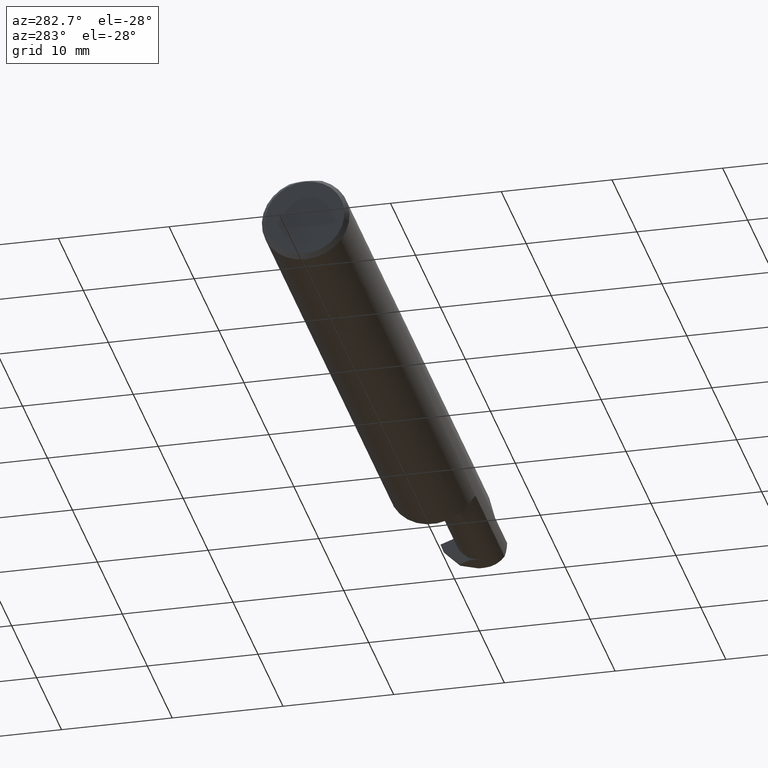
[diagram: clean part render]
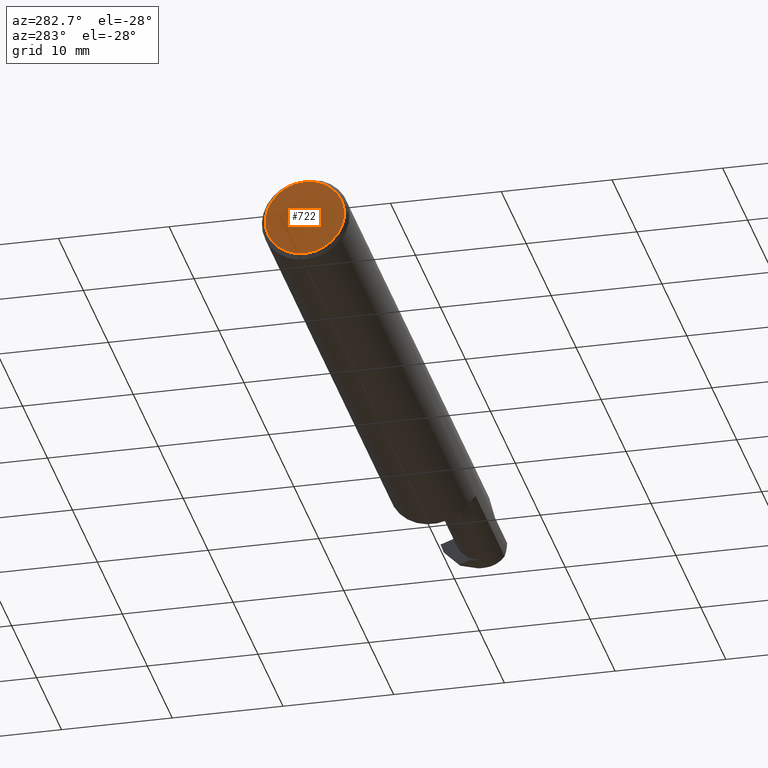
[diagram: same view with one face highlighted and labeled with its STEP entity id]
A machine part, auxiliary view. The second image highlights one B-rep face of the part: STEP entity #722.
In plain terms, the highlighted planar face has unit normal (-1, 0, -0).
Its self-contained STEP definition (entity closure, byte-faithful):
#77 = CARTESIAN_POINT ( 'NONE',  ( 0.000000000000000000, 0.000000000000000000, -0.1411000000000003085 ) ) ;
#248 = CARTESIAN_POINT ( 'NONE',  ( 0.000000000000000000, 1.819825143532968629E-17, 0.1411000000000003085 ) ) ;
#278 = DIRECTION ( 'NONE',  ( 0.000000000000000000, 0.000000000000000000, 1.000000000000000000 ) ) ;
#428 = DIRECTION ( 'NONE',  ( 1.000000000000000000, 0.000000000000000000, 0.000000000000000000 ) ) ;
#442 = CIRCLE ( 'NONE', #776, 0.1411000000000003085 ) ;
#448 = DIRECTION ( 'NONE',  ( -1.000000000000000000, 0.000000000000000000, -0.000000000000000000 ) ) ;
#526 = ORIENTED_EDGE ( 'NONE', *, *, #583, .F. ) ;
#536 = FACE_OUTER_BOUND ( 'NONE', #546, .T. ) ;
#546 = EDGE_LOOP ( 'NONE', ( #896, #526 ) ) ;
#575 = CARTESIAN_POINT ( 'NONE',  ( 0.000000000000000000, 0.000000000000000000, 0.000000000000000000 ) ) ;
#583 = EDGE_CURVE ( 'NONE', #967, #774, #442, .T. ) ;
#584 = DIRECTION ( 'NONE',  ( 0.000000000000000000, 0.000000000000000000, 1.000000000000000000 ) ) ;
#593 = EDGE_CURVE ( 'NONE', #774, #967, #654, .T. ) ;
#623 = AXIS2_PLACEMENT_3D ( 'NONE', #575, #966, #278 ) ;
#653 = CARTESIAN_POINT ( 'NONE',  ( 0.000000000000000000, 0.000000000000000000, 0.000000000000000000 ) ) ;
#654 = CIRCLE ( 'NONE', #623, 0.1411000000000003085 ) ;
#722 = ADVANCED_FACE ( 'NONE', ( #536 ), #838, .T. ) ;
#774 = VERTEX_POINT ( 'NONE', #77 ) ;
#776 = AXIS2_PLACEMENT_3D ( 'NONE', #653, #428, #584 ) ;
#830 = AXIS2_PLACEMENT_3D ( 'NONE', #925, #448, #835 ) ;
#835 = DIRECTION ( 'NONE',  ( -0.000000000000000000, 0.000000000000000000, 1.000000000000000000 ) ) ;
#838 = PLANE ( 'NONE',  #830 ) ;
#896 = ORIENTED_EDGE ( 'NONE', *, *, #593, .F. ) ;
#925 = CARTESIAN_POINT ( 'NONE',  ( 0.000000000000000000, 1.000000000000000000, -0.1560999999999999888 ) ) ;
#966 = DIRECTION ( 'NONE',  ( 1.000000000000000000, 0.000000000000000000, 0.000000000000000000 ) ) ;
#967 = VERTEX_POINT ( 'NONE', #248 ) ;